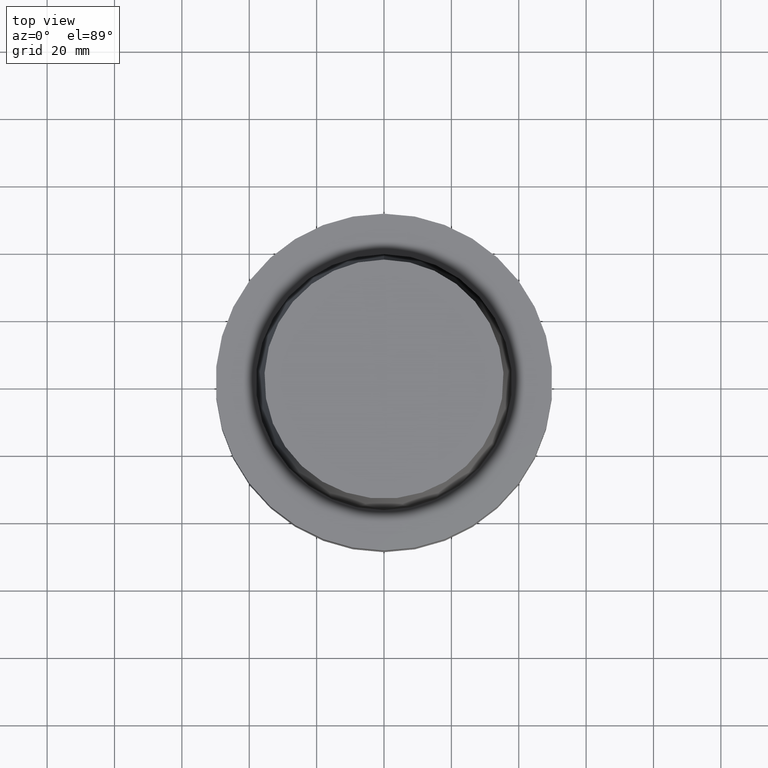
[diagram: clean part render]
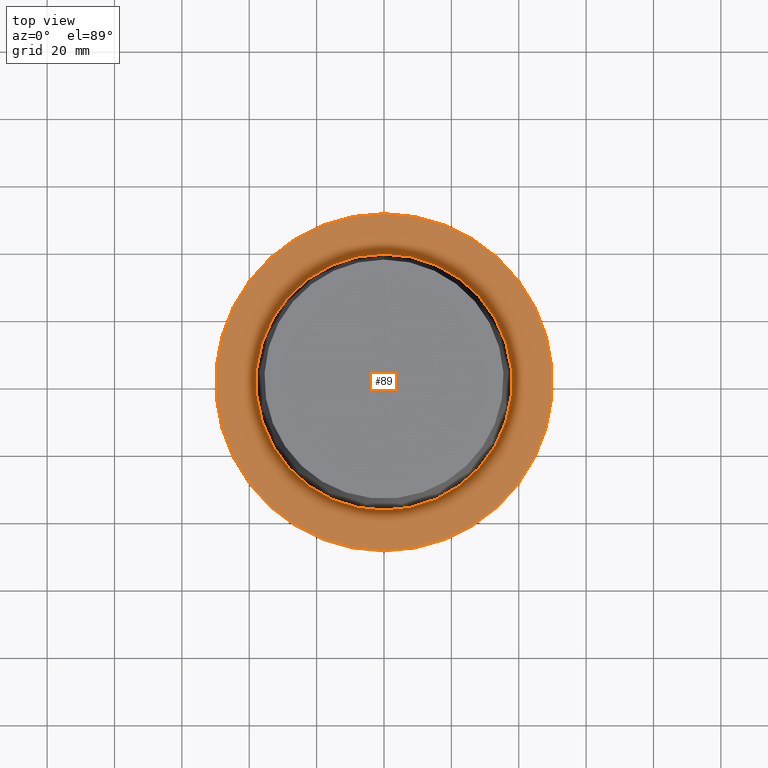
[diagram: same view with one face highlighted and labeled with its STEP entity id]
A machine part, top view. The second image highlights one B-rep face of the part: STEP entity #89.
In plain terms, the highlighted planar face has unit normal (-0, -0, 1).
Its self-contained STEP definition (entity closure, byte-faithful):
#89=ADVANCED_FACE('',(#132,#133),#134,.T.);
#132=FACE_BOUND('',#178,.T.);
#133=FACE_OUTER_BOUND('',#179,.T.);
#134=PLANE('',#180);
#178=EDGE_LOOP('',(#252));
#179=EDGE_LOOP('',(#253));
#180=AXIS2_PLACEMENT_3D('',#254,#255,#256);
#252=ORIENTED_EDGE('',*,*,#276,.F.);
#253=ORIENTED_EDGE('',*,*,#275,.T.);
#254=CARTESIAN_POINT('',(-5.39280255341176E-031,43.9999999999675,5.33844591624437E-015));
#255=DIRECTION('',(-6.12323399573677E-017,-1.14131346581447E-016,1.0));
#256=DIRECTION('',(-1.18156821444363E-032,1.0,1.14131346581447E-016));
#275=EDGE_CURVE('',#303,#303,#304,.T.);
#276=EDGE_CURVE('',#305,#305,#306,.T.);
#303=VERTEX_POINT('',#333);
#304=CIRCLE('',#334,50.0);
#305=VERTEX_POINT('',#335);
#306=CIRCLE('',#336,37.9999999999349);
#333=CARTESIAN_POINT('',(-6.10174348208179E-031,50.0,6.02323399573676E-015));
#334=AXIS2_PLACEMENT_3D('',#376,#377,#378);
#335=CARTESIAN_POINT('',(-4.68386162474174E-031,37.9999999999349,4.65365783675197E-015));
#336=AXIS2_PLACEMENT_3D('',#379,#380,#381);
#376=CARTESIAN_POINT('',(0.0,0.0,0.0));
#377=DIRECTION('',(-6.12323399573677E-017,-1.22464679914735E-016,1.0));
#378=DIRECTION('',(-1.23259516440783E-032,1.0,1.22464679914735E-016));
#379=CARTESIAN_POINT('',(0.0,0.0,0.0));
#380=DIRECTION('',(-6.12323399573677E-017,-1.22464679914735E-016,1.0));
#381=DIRECTION('',(-1.23259516440783E-032,1.0,1.22464679914735E-016));